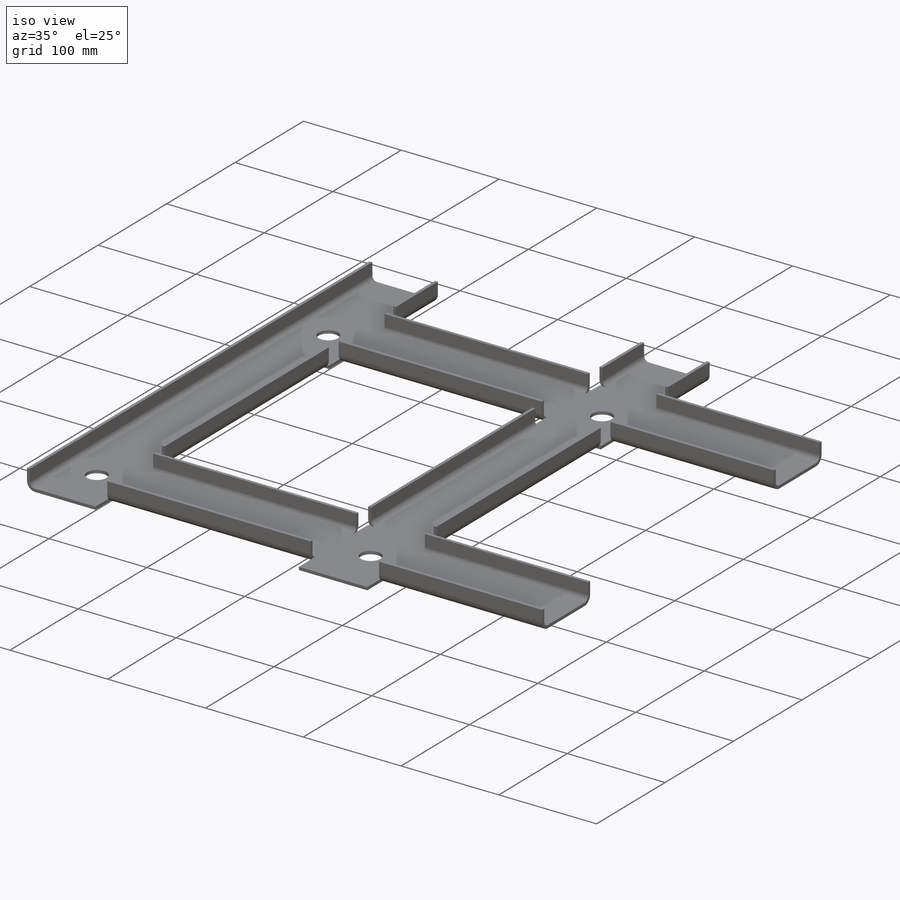
[diagram: iso view]
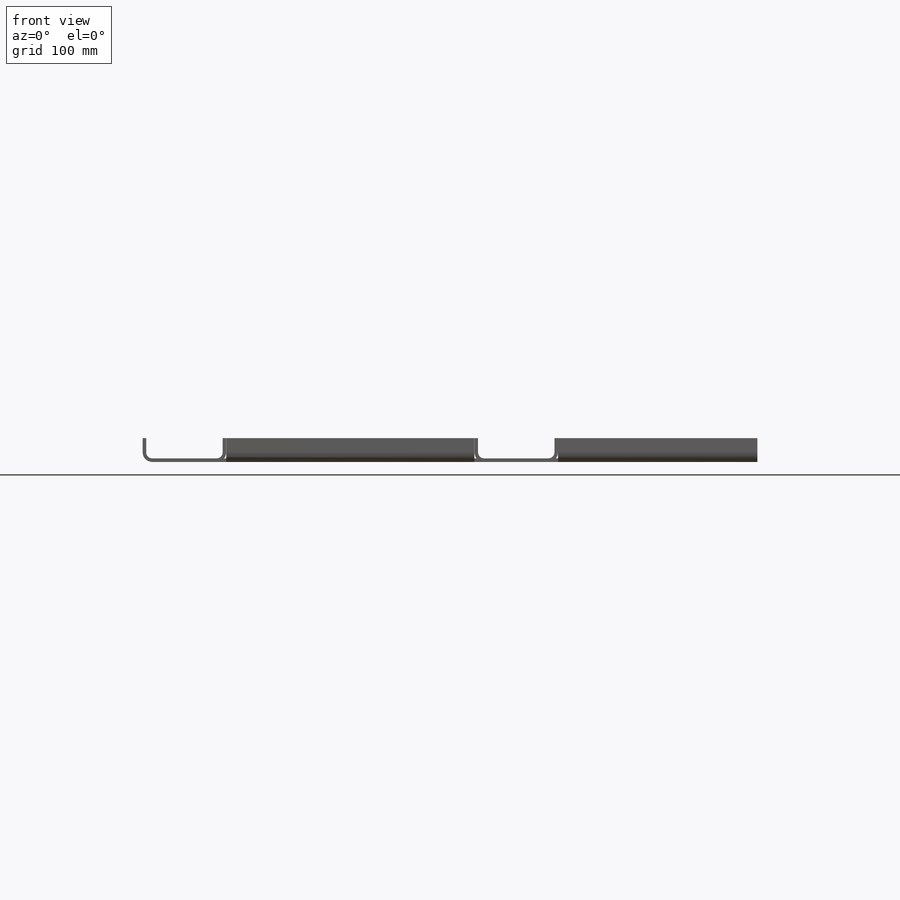
[diagram: front view]
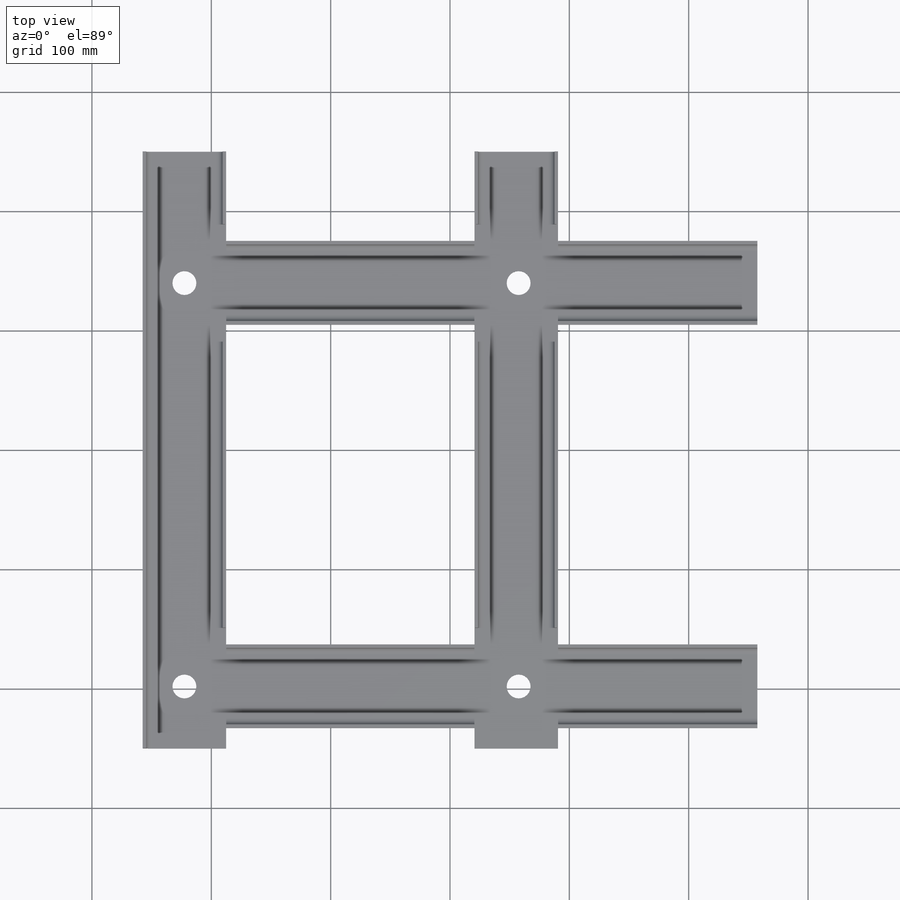
[diagram: top view]
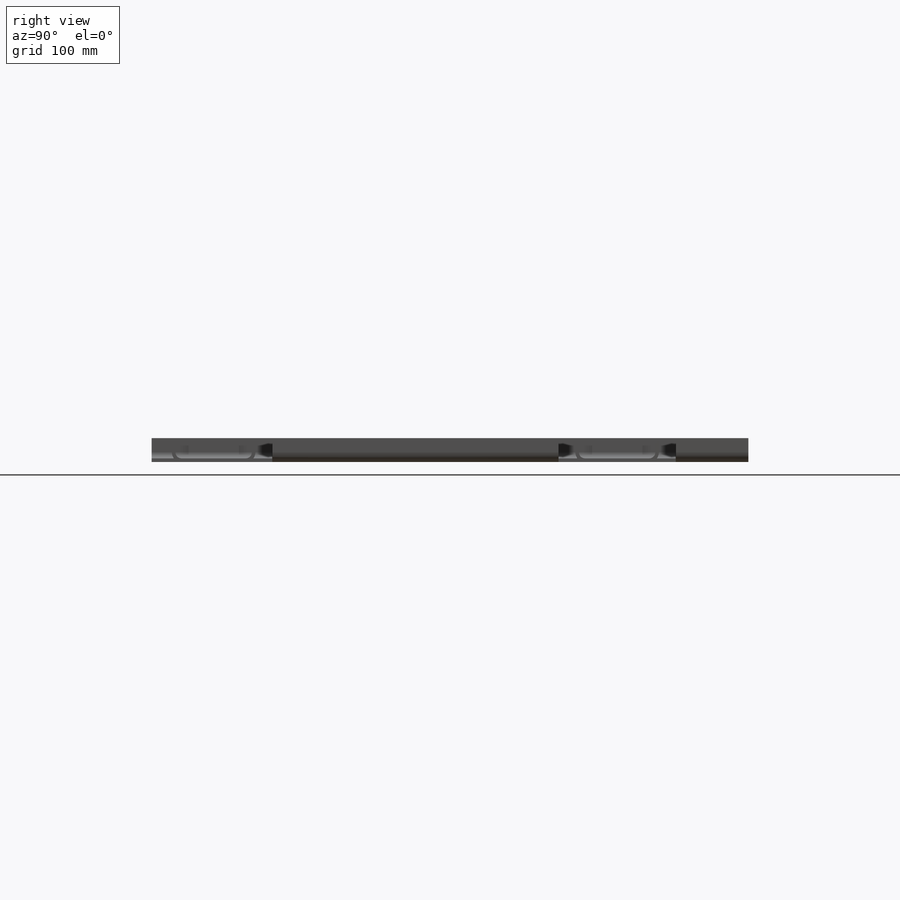
[diagram: right view]
SOLIDWORKS PART (.sldprt)
format: sldprt  version: not decoded by parser v0  size: 656,384 bytes
history: native  units: mm
features: sketch x25, sheet_metal_op x18, plane x3, material x1, cut_extrude x1 + 6 further entries (+9 scaffold rows collapsed)
feature tree (63):
  scaffold x9  (default folders/planes/origin — collapsed)
  material  "Al"
  plane  "Přední rovina"
  plane  "Vrchní rovina"
  plane  "Pravá rovina"
  sketch  "Skica1"  dims[c1.D1=515.0mm c1.D2=500.0mm c2.D1=5.0mm c2.D2=0.4554 c2.D3=0.0mm c2.D6=500.0mm]
  sheet_metal_op  "Základní plech1"
  sketch  "Skica6"  dims[c1.D10=~28.879212mm c1.D11=~28.879212mm c1.D12=20.0mm c1.D13=20.0mm c1.D1=70.0mm c1.D2=70.0mm c1.D3=208.0mm c1.D4=167.0mm c1.D5=75.0mm c1.D6=268.0mm c1.D7=70.0mm c1.D8=17.0mm c1.D9=280.0mm c2.D10=110.0mm c2.D11=35.0mm c2.D13=35.0mm]
  cut_extrude  "Odebrat vysunutím1"  Depth=10mm
  sketch  "Skica26"  dims[D1=0.1mm D2=0.1mm]
  sketch  "Skica27"  dims[D1=14.1mm]
  sketch  "Skica28"
  sketch  "Skica30"  dims[D1=0.1mm]
  sketch  "Skica32"
  sketch  "Skica34"
  sketch  "Skica36"
  sketch  "Skica38"
  sketch  "Skica40"  dims[D1=14.1mm D2=14.1mm]
  sketch  "Skica42"
  sketch  "Skica44"
  sketch  "Skica46"
  sketch  "Skica48"
  sketch  "Skica50"
  sketch  "Skica54"  dims[D1=5.0mm D4=90.0deg D5=1.0 D8=0.0mm D9=0.0mm]
  sheet_metal_op  "Ohyb z hrany11"
  sheet_metal_op  "Ohyb z hrany12"
  sheet_metal_op  "Ohyb z hrany13"
  sheet_metal_op  "Ohyb z hrany14"
  sheet_metal_op  "Ohyb z hrany15"
  sheet_metal_op  "Ohyb z hrany16"
  sheet_metal_op  "Ohyb z hrany17"
  sheet_metal_op  "Ohyb z hrany18"
  sheet_metal_op  "Ohyb z hrany19"
  sheet_metal_op  "Ohyb z hrany20"
  sheet_metal_op  "Ohyb z hrany21"
  sheet_metal_op  "Ohyb z hrany22"
  sheet_metal_op  "Ohyb z hrany23"
  sheet_metal_op  "Ohyb z hrany24"
  sketch  "Čáry ohybu1"
  sketch  "Vymezovací rámeček1"
  sheet_metal_op  "Plechový díl2"
  "Rozvinutý tvar2"
  sketch  "Čáry ohybu2"
  sketch  "Vymezovací rámeček2"
  "Transformace skici1"
  sheet_metal_op  "Plechový díl3"
  "Rozvinutý tvar2"
  sketch  "Čáry ohybu2"
  sketch  "Vymezovací rámeček2"
  "Transformace skici1"
  sheet_metal_op  "Plechový díl5"
  "Rozvinutý tvar2"
  sketch  "Čáry ohybu2"
  sketch  "Vymezovací rámeček2"
  "Transformace skici1"
decode coverage: 8 of 44 modeling features carry decoded parameters; 6 rows unclassified (native names shown)
note: ~ marks probable driven/reference dimensions
note: suppression state not decoded; provenance and decode notes live in map.json
